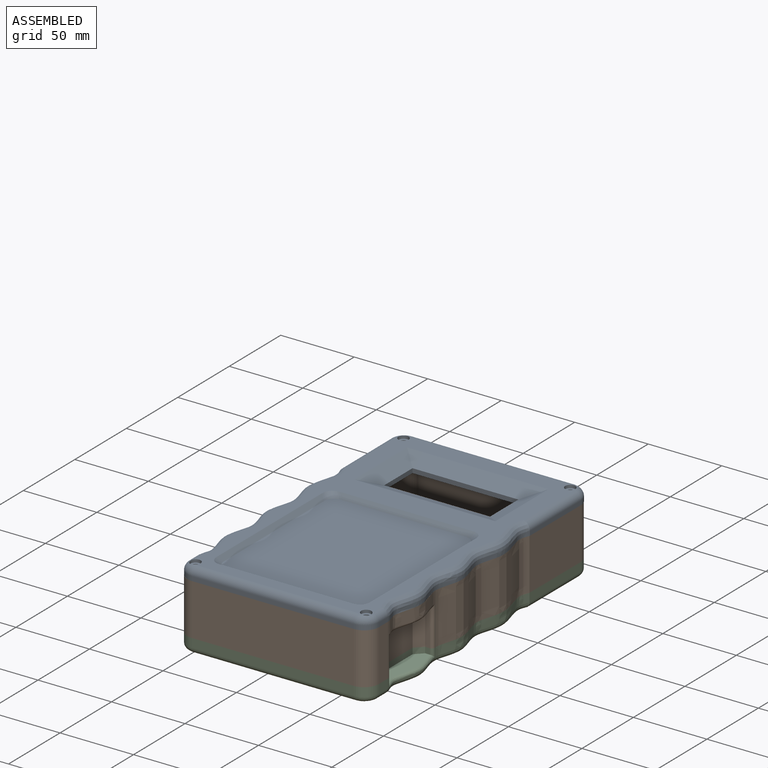
[diagram: assembled view]
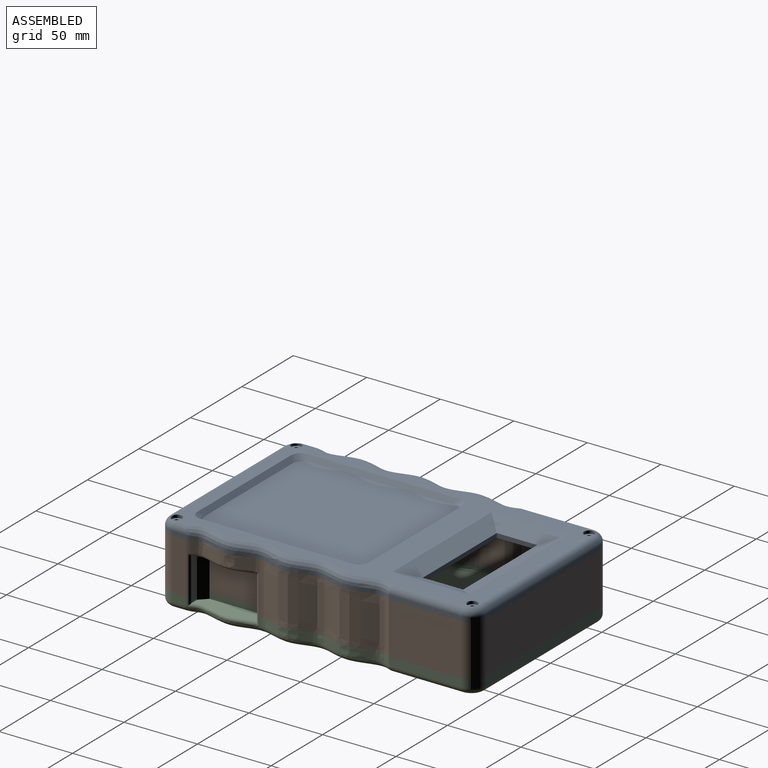
[diagram: assembled view, second angle]
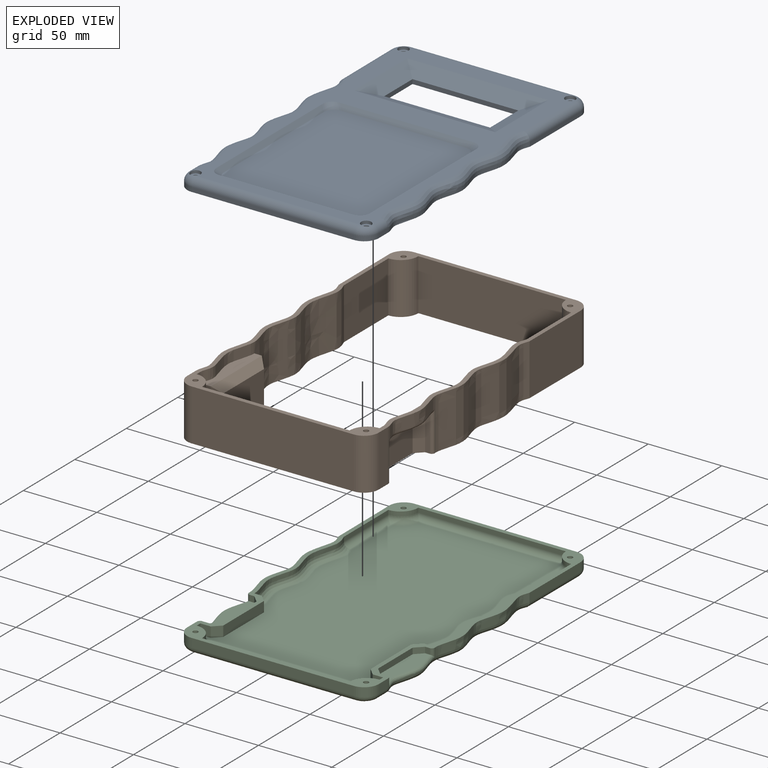
[diagram: exploded view]
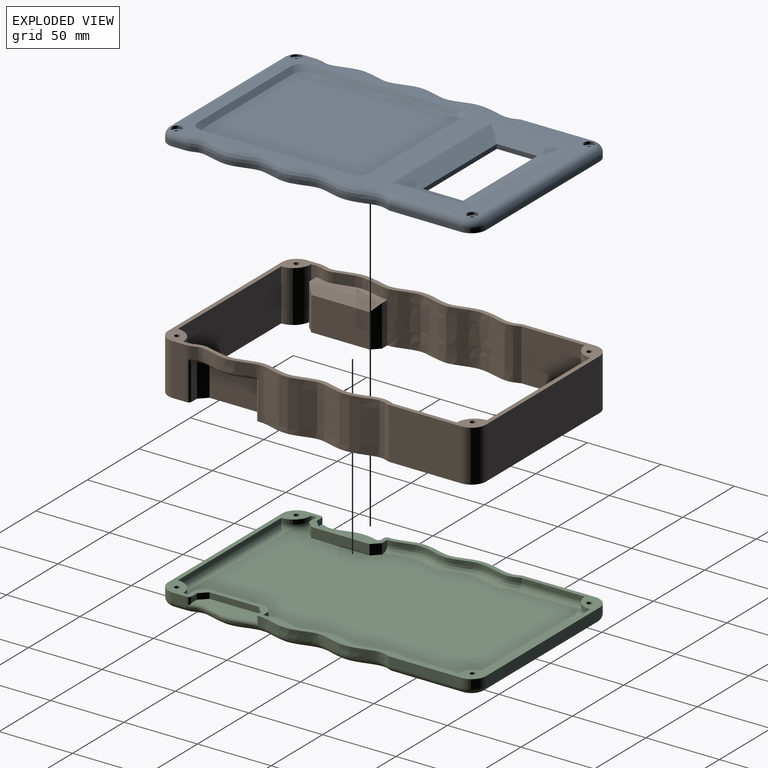
[diagram: exploded view, second angle]
ASSEMBLY  parts=3 mates=2
PART A: 90 faces, bbox 138.4x239.9x11.8 mm
  f0: plane 91.96x5.01mm, normal (0,0,-1), area 450.8mm2, adj f17,f50,f51,f85
  f1: plane 97.98x2.06mm, normal (0,0,-1), area 194mm2, adj f21,f41,f55,f56,f78,f89
  f2: plane 11.46x2.03mm, normal (0,0,-1), area 10.9mm2, adj f22,f41,f53,f54,f55
  f3: plane 39.85x4.02mm, normal (0,0,-1), area 77.6mm2, adj f22,f53
  f4: plane 39.99x4.02mm, normal (0,0,-1), area 75.8mm2, adj f22,f53
  f5: cylinder r=1.75mm len=6mm, axis (0,0,1), area 66mm2, adj f29,f38
  f6: cylinder r=1.75mm len=6mm, axis (0,0,1), area 66mm2, adj f29,f36
  f7: plane 122.16x93.89mm, normal (0,0,-1), area 2671.6mm2, adj f18,f19,f22,f23,f42,f51,f52,f53
  f8: plane 114.39x102.13mm, normal (0,0,1), area 10840.1mm2, adj f32,f33,f34,f39,f40,f71,f76,f77
  f9: plane 72x3mm, normal (0,1,0), area 216mm2, adj f10,f13,f16,f62
  f10: plane 27.5x3mm, normal (1,0,0), area 82.5mm2, adj f9,f11,f13,f15
  f11: plane 72x3mm, normal (0,-1,0), area 216mm2, adj f10,f13,f14,f62
  f12: plane 209.89x128.15mm, normal (0,0,1), area 7531mm2, adj f14,f15,f16,f32,f33,f34,f35,f37
  f13: plane 76x32mm, normal (0,0,-1), area 452mm2, adj f9,f10,f11,f17,f18,f19,f62,f64
  f14: plane 96x12mm, normal (0,-0.38,0.92), area 1092mm2, adj f11,f12,f15,f63
  f15: plane 51.5x12mm, normal (0.38,0,0.92), area 513.5mm2, adj f10,f12,f14,f16
  f16: plane 96x12mm, normal (0,0.38,0.92), area 1092mm2, adj f9,f12,f15,f63
  f17: plane 98.59x12.56mm, normal (0,0.38,-0.92), area 1140.5mm2, adj f0,f13,f18,f51,f64,f85
  f18: plane 55.57x12.55mm, normal (-0.38,0,-0.92), area 569.9mm2, adj f7,f13,f17,f19,f51
  f19: plane 100x12mm, normal (0,-0.38,-0.92), area 1144mm2, adj f7,f13,f18,f64
  f20: plane 118.39x108.13mm, normal (0,0,-1), area 11921.1mm2, adj f21,f22,f23,f41,f42,f65,f78,f79
  f21: plane 96.2x3mm, normal (0,-0.71,-0.71), area 395.4mm2, adj f1,f20,f41,f78
  f22: plane 106.46x3mm, normal (-0.71,0,-0.71), area 439mm2, adj f2,f3,f4,f7,f20,f41,f42,f53
  f23: plane 96.2x3mm, normal (0,0.71,-0.71), area 395.4mm2, adj f7,f20,f42,f79
  f24: plane 110.27x3mm, normal (0,1,0), area 330.8mm2, adj f29,f30,f43,f69
  f25: plane 49.16x3mm, normal (-1,0,0), area 147.5mm2, adj f26,f29,f30,f47
  f26: extruded ~138.43x4.03mm, area 423.1mm2, adj f25,f27,f29,f49
  f27: plane 8.47x3mm, normal (-1,0,0), area 25.4mm2, adj f26,f29,f31,f48
  f28: plane 110.34x3mm, normal (0,-1,0), area 331mm2, adj f29,f31,f44,f70
  f29: plane 218.16x136.41mm, normal (0,0,-1), area 2360.7mm2, adj f5,f6,f24,f25,f26,f27,f28,f30
  f30: cylinder r=10mm len=10.04mm, axis (0,0,1), area 47.2mm2, adj f24,f25,f29,f45
  f31: cylinder r=10mm len=10mm, axis (0,0,-1), area 47.1mm2, adj f27,f28,f29,f46
  f32: plane 90.2x3mm, normal (0,-0.71,0.71), area 370mm2, adj f8,f12,f39,f76
  f33: plane 102.46x3mm, normal (0.71,0,0.71), area 422mm2, adj f8,f12,f39,f40
  f34: plane 90.2x3mm, normal (0,0.71,0.71), area 370mm2, adj f8,f12,f40,f77
  f35: cylinder r=3.5mm len=7mm, axis (0,0,1), area 43.6mm2, adj f12,f36,f43,f45
  f36: plane 7x7mm, normal (0,0,1), area 28.9mm2, adj f6,f35
  f37: cylinder r=3.5mm len=7mm, axis (0,0,1), area 43.8mm2, adj f12,f38,f46,f48
  f38: plane 7x7mm, normal (0,0,1), area 28.9mm2, adj f5,f37
  f39: cylinder r=10mm len=10.07mm, axis (-0.58,0.58,0.58), area 54.4mm2, adj f8,f12,f32,f33
  f40: cylinder r=10mm len=10.07mm, axis (0.58,0.58,-0.58), area 54.4mm2, adj f8,f12,f33,f34
  f41: cylinder r=10mm len=10.82mm, axis (0.58,0.58,-0.58), area 51.2mm2, adj f1,f2,f20,f21,f22,f55
  f42: cylinder r=10mm len=10.07mm, axis (-0.58,0.58,0.58), area 54.4mm2, adj f7,f20,f22,f23
  f43: cylinder r=5mm len=110.27mm, axis (1,0,0), area 866.1mm2, adj f12,f24,f35,f45,f72,f80
  f44: cylinder r=5mm len=110.34mm, axis (-1,0,0), area 866.6mm2, adj f12,f28,f46,f81
  f45: torus R=5mm, axis (0,0,1), area 96.4mm2, adj f12,f30,f35,f43,f47
  f46: torus R=5mm, axis (0,0,1), area 88.3mm2, adj f12,f31,f37,f44,f48
  f47: cylinder r=5mm len=49.18mm, axis (0,1,0), area 382.5mm2, adj f12,f25,f45,f49
  f48: cylinder r=5mm len=8.47mm, axis (0,1,0), area 66.3mm2, adj f12,f27,f37,f46,f49
  f49: bspline ~183.93x9.21mm, area 1115.2mm2, adj f12,f26,f47,f48
  f50: cylinder r=5mm len=104.34mm, axis (1,0,0), area 760.3mm2, adj f0,f29,f51,f85
  f51: bspline ~22.01x21.2mm, area 154.1mm2, adj f0,f7,f17,f18,f29,f50,f52
  f52: cylinder r=5mm len=45.11mm, axis (0,1,0), area 321.5mm2, adj f7,f29,f51,f53
  f53: bspline ~141.35x9.04mm, area 1124.2mm2, adj f2,f3,f4,f7,f22,f29,f52,f54
  f54: cylinder r=5mm len=5.47mm, axis (0,1,0), area 29.6mm2, adj f2,f29,f53,f55
  f55: bspline ~20.33x16.24mm, area 99.1mm2, adj f1,f2,f29,f41,f54,f56
  f56: cylinder r=5mm len=104.34mm, axis (-1,0,0), area 787.6mm2, adj f1,f29,f55,f89
  f57: plane 11.46x2.03mm, normal (0,0,-1), area 10.9mm2, adj f65,f78,f87,f88,f89
  f58: plane 39.85x4.02mm, normal (0,0,-1), area 77.6mm2, adj f65,f87
  f59: plane 39.99x4.02mm, normal (0,0,-1), area 75.8mm2, adj f65,f87
  f60: cylinder r=1.75mm len=6mm, axis (0,0,1), area 66mm2, adj f29,f75
  f61: cylinder r=1.75mm len=6mm, axis (0,0,1), area 66mm2, adj f29,f73
  f62: plane 27.5x3mm, normal (-1,0,0), area 82.5mm2, adj f9,f11,f13,f63
  f63: plane 51.5x12mm, normal (-0.38,0,0.92), area 513.5mm2, adj f12,f14,f16,f62
  f64: plane 55.57x12.55mm, normal (0.38,0,-0.92), area 569.9mm2, adj f7,f13,f17,f19,f85
  f65: plane 106.46x3mm, normal (0.71,0,-0.71), area 439mm2, adj f7,f20,f57,f58,f59,f78,f79,f87
  f66: plane 49.16x3mm, normal (1,0,0), area 147.5mm2, adj f29,f67,f69,f82
  f67: extruded ~138.43x4.03mm, area 423.1mm2, adj f29,f66,f68,f84
  f68: plane 8.47x3mm, normal (1,0,0), area 25.4mm2, adj f29,f67,f70,f83
  f69: cylinder r=10mm len=10.04mm, axis (0,0,1), area 47.2mm2, adj f24,f29,f66,f80
  f70: cylinder r=10mm len=10mm, axis (0,0,-1), area 47.1mm2, adj f28,f29,f68,f81
  f71: plane 102.46x3mm, normal (-0.71,0,0.71), area 422mm2, adj f8,f12,f76,f77
  f72: cylinder r=3.5mm len=7mm, axis (0,0,1), area 43.6mm2, adj f12,f43,f73,f80
  f73: plane 7x7mm, normal (0,0,1), area 28.9mm2, adj f61,f72
  f74: cylinder r=3.5mm len=7mm, axis (0,0,1), area 43.8mm2, adj f12,f75,f81,f83
  f75: plane 7x7mm, normal (0,0,1), area 28.9mm2, adj f60,f74
  f76: cylinder r=10mm len=10.07mm, axis (0.58,0.58,0.58), area 54.4mm2, adj f8,f12,f32,f71
  f77: cylinder r=10mm len=10.07mm, axis (-0.58,0.58,-0.58), area 54.4mm2, adj f8,f12,f34,f71
  f78: cylinder r=10mm len=10.82mm, axis (-0.58,0.58,-0.58), area 51.2mm2, adj f1,f20,f21,f57,f65,f89
  f79: cylinder r=10mm len=10.07mm, axis (0.58,0.58,0.58), area 54.4mm2, adj f7,f20,f23,f65
  f80: torus R=5mm, axis (0,0,1), area 96.4mm2, adj f12,f43,f69,f72,f82
  f81: torus R=5mm, axis (0,0,1), area 88.3mm2, adj f12,f44,f70,f74,f83
  f82: cylinder r=5mm len=49.18mm, axis (0,1,0), area 382.5mm2, adj f12,f66,f80,f84
  f83: cylinder r=5mm len=8.47mm, axis (0,1,0), area 66.3mm2, adj f12,f68,f74,f81,f84
  f84: bspline ~183.93x9.22mm, area 1115.2mm2, adj f12,f67,f82,f83
  f85: bspline ~21.2x21.14mm, area 154.1mm2, adj f0,f7,f17,f29,f50,f64,f86
  f86: cylinder r=5mm len=45.11mm, axis (0,1,0), area 321.5mm2, adj f7,f29,f85,f87
  f87: bspline ~141.35x9.04mm, area 1124.3mm2, adj f7,f29,f57,f58,f59,f65,f86,f88
  f88: cylinder r=5mm len=5.47mm, axis (0,1,0), area 29.6mm2, adj f29,f57,f87,f89
  f89: bspline ~20.33x17.15mm, area 99.1mm2, adj f1,f29,f56,f57,f78,f88
PART B: 78 faces, bbox 134.4x216.1x35 mm
  f0: plane 35x3.48mm, normal (1,0,0), area 121.9mm2, adj f1,f20,f22,f23,f34
  f1: plane 28x7.07mm, normal (0,-1,0), area 197.8mm2, adj f0,f22,f35,f39
  f2: plane 39.6x23mm, normal (1,0,0), area 910.7mm2, adj f22,f39,f40,f41
  f3: plane 28x5.09mm, normal (0,1,0), area 142.6mm2, adj f4,f22,f35,f41
  f4: extruded ~89.93x35mm, area 3223.3mm2, adj f3,f5,f22,f23,f32
  f5: plane 43.1x35mm, normal (1,0,0), area 1508.3mm2, adj f4,f6,f22,f23
  f6: cylinder r=12mm len=35mm, axis (0,0,-1), area 659.7mm2, adj f5,f7,f22,f23
  f7: plane 100.34x35mm, normal (0,-1,0), area 3512mm2, adj f6,f22,f23,f48
  f8: plane 110.14x35mm, normal (0,1,0), area 3855mm2, adj f22,f23,f25,f61
  f9: plane 49.32x35mm, normal (-1,0,0), area 1726.3mm2, adj f10,f22,f23,f25
  f10: extruded ~88.67x35mm, area 3183mm2, adj f9,f11,f22,f23
  f11: extruded ~35x3mm, area 47.8mm2, adj f10,f22,f23,f26,f29,f31
  f12: plane 25x3.13mm, normal (0,-1,0), area 78.1mm2, adj f22,f27,f29,f36
  f13: plane 33.6x20mm, normal (-1,0,0), area 671.9mm2, adj f22,f36,f37,f38
  f14: plane 25.04x5.02mm, normal (0,1,0), area 125.2mm2, adj f22,f27,f28,f30,f38
  f15: extruded ~35x3mm, area 57.8mm2, adj f16,f22,f23,f26,f28,f30
  f16: plane 35x8.48mm, normal (-1,0,0), area 296.9mm2, adj f15,f22,f23,f24
  f17: plane 110.34x35mm, normal (0,-1,0), area 3862mm2, adj f22,f23,f24,f60
  f18: plane 100.34x35mm, normal (0,1,0), area 3512mm2, adj f20,f22,f23,f58
  f19: cylinder r=1.75mm len=35mm, axis (0,0,-1), area 384.8mm2, adj f22,f23
  f20: cylinder r=12mm len=35mm, axis (0,0,-1), area 659.7mm2, adj f0,f18,f22,f23
  f21: cylinder r=1.75mm len=35mm, axis (0,0,-1), area 384.8mm2, adj f22,f23
  f22: plane 216.11x134.35mm, normal (0,0,1), area 2492.4mm2, adj f0,f1,f2,f3,f4,f5,f6,f7
  f23: plane 216.11x134.35mm, normal (0,0,-1), area 2370.7mm2, adj f0,f4,f5,f6,f7,f8,f9,f10
  f24: cylinder r=10mm len=35mm, axis (0,0,-1), area 549.8mm2, adj f16,f17,f22,f23
  f25: cylinder r=10mm len=35mm, axis (0,0,1), area 551mm2, adj f8,f9,f22,f23
  f26: extruded ~43.6x8mm, area 357.4mm2, adj f11,f15,f23,f30
  f27: plane 43.61x7.07mm, normal (0,0,1), area 221mm2, adj f12,f14,f29,f30,f31,f37,f38
  f28: cylinder r=2mm len=26.34mm, axis (0,0,-1), area 75.1mm2, adj f14,f15,f22,f30
  f29: cylinder r=2mm len=27mm, axis (0,0,-1), area 83.8mm2, adj f11,f12,f22,f27,f31
  f30: bspline ~48.25x6.02mm, area 141.5mm2, adj f14,f15,f26,f27,f28,f31
  f31: bspline ~3.55x2.41mm, area 3.1mm2, adj f11,f27,f29,f30
  f32: extruded ~7x3mm, area 21.1mm2, adj f4,f23,f33,f35
  f33: extruded ~43.6x7mm, area 313mm2, adj f23,f32,f34,f35
  f34: extruded ~7x3mm, area 21.4mm2, adj f0,f23,f33,f35
  f35: plane 49.6x9.47mm, normal (0,0,-1), area 343.2mm2, adj f1,f3,f32,f33,f34,f39,f40
  f36: plane 25x5mm, normal (-0.71,-0.71,0), area 159.1mm2, adj f12,f13,f22,f37
  f37: plane 43.6x5mm, normal (-0.71,0,0.71), area 272.9mm2, adj f13,f27,f36,f38
  f38: plane 25x5mm, normal (-0.71,0.71,0), area 159.1mm2, adj f13,f14,f22,f27,f37
  f39: plane 28x5mm, normal (0.71,-0.71,0), area 180.3mm2, adj f1,f2,f22,f35,f40
  f40: plane 49.6x5mm, normal (0.71,0,-0.71), area 315.3mm2, adj f2,f35,f39,f41
  f41: plane 28x5mm, normal (0.71,0.71,0), area 180.3mm2, adj f2,f3,f22,f40
  f42: plane 35x3.48mm, normal (-1,0,0), area 121.9mm2, adj f22,f23,f43,f58,f70
  f43: plane 28x7.07mm, normal (0,-1,0), area 197.8mm2, adj f22,f42,f71,f75
  f44: plane 39.6x23mm, normal (-1,0,0), area 910.7mm2, adj f22,f75,f76,f77
  f45: plane 28x5.09mm, normal (0,1,0), area 142.6mm2, adj f22,f46,f71,f77
  f46: extruded ~89.93x35mm, area 3223.3mm2, adj f22,f23,f45,f47,f68
  f47: plane 43.1x35mm, normal (-1,0,0), area 1508.3mm2, adj f22,f23,f46,f48
  f48: cylinder r=12mm len=35mm, axis (0,0,-1), area 659.7mm2, adj f7,f22,f23,f47
  f49: plane 49.32x35mm, normal (1,0,0), area 1726.3mm2, adj f22,f23,f50,f61
  f50: extruded ~88.67x35mm, area 3183mm2, adj f22,f23,f49,f51
  f51: extruded ~35x3mm, area 47.8mm2, adj f22,f23,f50,f62,f65,f67
  f52: plane 25x3.13mm, normal (0,-1,0), area 78.1mm2, adj f22,f63,f65,f72
  f53: plane 33.6x20mm, normal (1,0,0), area 671.9mm2, adj f22,f72,f73,f74
  f54: plane 25.04x5.02mm, normal (0,1,0), area 125.2mm2, adj f22,f63,f64,f66,f74
  f55: extruded ~35x3mm, area 57.8mm2, adj f22,f23,f56,f62,f64,f66
  f56: plane 35x8.48mm, normal (1,0,0), area 296.9mm2, adj f22,f23,f55,f60
  f57: cylinder r=1.75mm len=35mm, axis (0,0,-1), area 384.8mm2, adj f22,f23
  f58: cylinder r=12mm len=35mm, axis (0,0,-1), area 659.7mm2, adj f18,f22,f23,f42
  f59: cylinder r=1.75mm len=35mm, axis (0,0,-1), area 384.8mm2, adj f22,f23
  f60: cylinder r=10mm len=35mm, axis (0,0,-1), area 549.8mm2, adj f17,f22,f23,f56
  f61: cylinder r=10mm len=35mm, axis (0,0,1), area 551mm2, adj f8,f22,f23,f49
  f62: extruded ~43.6x8mm, area 357.4mm2, adj f23,f51,f55,f66
  f63: plane 43.61x7.07mm, normal (0,0,1), area 221mm2, adj f52,f54,f65,f66,f67,f73,f74
  f64: cylinder r=2mm len=26.34mm, axis (0,0,-1), area 75.1mm2, adj f22,f54,f55,f66
  f65: cylinder r=2mm len=27mm, axis (0,0,-1), area 83.8mm2, adj f22,f51,f52,f63,f67
  f66: bspline ~48.83x6.02mm, area 141.5mm2, adj f54,f55,f62,f63,f64,f67
  f67: bspline ~3.55x2.41mm, area 3.1mm2, adj f51,f63,f65,f66
  f68: extruded ~7x3mm, area 21.1mm2, adj f23,f46,f69,f71
  f69: extruded ~43.6x7mm, area 313mm2, adj f23,f68,f70,f71
  f70: extruded ~7x3mm, area 21.4mm2, adj f23,f42,f69,f71
  f71: plane 49.6x9.47mm, normal (0,0,-1), area 343.2mm2, adj f43,f45,f68,f69,f70,f75,f76
  f72: plane 25x5mm, normal (0.71,-0.71,0), area 159.1mm2, adj f22,f52,f53,f73
  f73: plane 43.6x5mm, normal (0.71,0,0.71), area 272.9mm2, adj f53,f63,f72,f74
  f74: plane 25x5mm, normal (0.71,0.71,0), area 159.1mm2, adj f22,f53,f54,f63,f73
  f75: plane 28x5mm, normal (-0.71,-0.71,0), area 180.3mm2, adj f22,f43,f44,f71,f76
  f76: plane 49.6x5mm, normal (-0.71,0,-0.71), area 315.3mm2, adj f44,f71,f75,f77
  f77: plane 28x5mm, normal (-0.71,0.71,0), area 180.3mm2, adj f22,f44,f45,f76
PART C: 149 faces, bbox 147.2x232.2x10.3 mm
  f0: cylinder r=1.75mm len=6mm, axis (0,0,-1), area 66mm2, adj f24,f65
  f1: cylinder r=1.75mm len=6mm, axis (0,0,-1), area 66mm2, adj f24,f58
  f2: plane 208.12x126.37mm, normal (0,0,-1), area 25191mm2, adj f36,f37,f38,f39,f40,f41,f42,f43
  f3: plane 4x3.13mm, normal (0,-1,0), area 12.5mm2, adj f24,f25,f27,f32
  f4: plane 33.6x4mm, normal (-1,0,0), area 134.4mm2, adj f24,f25,f32,f33
  f5: plane 5.02x4.04mm, normal (0,1,0), area 20mm2, adj f24,f25,f26,f28,f33
  f6: plane 202.11x120.36mm, normal (0,0,1), area 22365.9mm2, adj f17,f18,f19,f30,f31,f46,f47,f48
  f7: plane 110.14x6mm, normal (0,1,0), area 660.9mm2, adj f24,f34,f44,f107
  f8: plane 49.32x6mm, normal (-1,0,0), area 295.9mm2, adj f9,f24,f34,f43
  f9: extruded ~88.67x6mm, area 545.7mm2, adj f8,f10,f24,f42
  f10: extruded ~6x0.88mm, area 5.3mm2, adj f9,f24,f27,f41
  f11: extruded ~6x3mm, area 7.9mm2, adj f12,f24,f26,f28,f39
  f12: plane 8.48x6mm, normal (-1,0,0), area 50.9mm2, adj f11,f24,f35,f38
  f13: plane 110.34x6mm, normal (0,-1,0), area 662.1mm2, adj f24,f35,f36,f108
  f14: plane 100.34x3mm, normal (0,1,0), area 301mm2, adj f15,f24,f47,f90
  f15: cylinder r=12mm len=12mm, axis (0,0,-1), area 56.5mm2, adj f14,f16,f24,f46
  f16: plane 6.97x3.48mm, normal (1,0,0), area 20.9mm2, adj f15,f17,f24,f46
  f17: plane 7.33x7.26mm, normal (0,-1,0), area 49.4mm2, adj f6,f16,f24,f30,f46
  f18: plane 39.6x7mm, normal (1,0,0), area 277.2mm2, adj f6,f24,f30,f31
  f19: plane 7.14x5.23mm, normal (0,1,0), area 32.2mm2, adj f6,f20,f24,f31,f48
  f20: extruded ~89.93x4.05mm, area 276.3mm2, adj f19,f21,f24,f48
  f21: plane 43.1x3mm, normal (1,0,0), area 129.3mm2, adj f20,f22,f24,f49
  f22: cylinder r=12mm len=12mm, axis (0,0,-1), area 56.5mm2, adj f21,f23,f24,f50
  f23: plane 100.34x3mm, normal (0,-1,0), area 301mm2, adj f22,f24,f51,f97
  f24: plane 216.11x134.35mm, normal (0,0,1), area 2492.4mm2, adj f0,f1,f3,f4,f5,f7,f8,f9
  f25: plane 43.61x12.07mm, normal (0,0,1), area 413.9mm2, adj f3,f4,f5,f27,f28,f29,f32,f33
  f26: cylinder r=2mm len=5.34mm, axis (0,0,-1), area 13.7mm2, adj f5,f11,f24,f28
  f27: cylinder r=2mm len=6mm, axis (0,0,-1), area 15.2mm2, adj f3,f10,f24,f25,f29
  f28: bspline ~48.25x6.02mm, area 141.5mm2, adj f5,f11,f25,f26,f29,f40
  f29: bspline ~3.55x2.41mm, area 3.1mm2, adj f25,f27,f28,f41
  f30: plane 7x5mm, normal (0.71,-0.71,0), area 49.5mm2, adj f6,f17,f18,f24
  f31: plane 7x5mm, normal (0.71,0.71,0), area 49.5mm2, adj f6,f18,f19,f24
  f32: plane 5x5mm, normal (-0.71,-0.71,0), area 28.3mm2, adj f3,f4,f24,f25
  f33: plane 5x5mm, normal (-0.71,0.71,0), area 28.3mm2, adj f4,f5,f24,f25
  f34: cylinder r=10mm len=10.04mm, axis (0,0,1), area 94.5mm2, adj f7,f8,f24,f45
  f35: cylinder r=10mm len=10mm, axis (0,0,-1), area 94.2mm2, adj f12,f13,f24,f37
  f36: cylinder r=4mm len=110.34mm, axis (1,0,0), area 693.3mm2, adj f2,f13,f37,f109
  f37: torus R=6mm, axis (0,0,1), area 71.1mm2, adj f2,f35,f36,f38,f75,f77,f79
  f38: cylinder r=4mm len=8.48mm, axis (0,-1,0), area 53.3mm2, adj f2,f12,f37,f39,f78
  f39: bspline ~4.32x4mm, area 16.9mm2, adj f2,f11,f38,f40
  f40: bspline ~89.12x15.54mm, area 281.6mm2, adj f2,f28,f39,f41
  f41: bspline ~9.88x4.41mm, area 20.6mm2, adj f2,f10,f29,f40,f42
  f42: bspline ~110.43x8.28mm, area 571.6mm2, adj f2,f9,f41,f43
  f43: cylinder r=4mm len=49.34mm, axis (0,-1,0), area 307.6mm2, adj f2,f8,f42,f45
  f44: cylinder r=4mm len=110.14mm, axis (-1,0,0), area 692.1mm2, adj f2,f7,f45,f116
  f45: torus R=6mm, axis (0,0,1), area 82.3mm2, adj f2,f34,f43,f44,f66,f67,f69
  f46: torus R=16mm, axis (0,0,1), area 120.5mm2, adj f6,f15,f16,f17,f47
  f47: cylinder r=4mm len=100.34mm, axis (1,0,0), area 608.5mm2, adj f6,f14,f46,f117
  f48: bspline ~93.01x8.08mm, area 579.8mm2, adj f6,f19,f20,f49
  f49: cylinder r=4mm len=43.1mm, axis (0,-1,0), area 257.4mm2, adj f6,f21,f48,f50
  f50: torus R=16mm, axis (0,0,1), area 110.3mm2, adj f6,f22,f49,f51
  f51: cylinder r=4mm len=100.34mm, axis (-1,0,0), area 608.5mm2, adj f6,f23,f50,f120
  f52: plane 3.21x3.16mm, normal (0.87,-0.5,0), area 11.1mm2, adj f53,f57,f58,f76,f77,f78,f79
  f53: plane 3.52x3.21mm, normal (0,-1,0), area 11.3mm2, adj f52,f54,f58,f74
  f54: plane 3.21x3.05mm, normal (-0.87,-0.5,0), area 11.3mm2, adj f53,f55,f58,f72
  f55: plane 3.21x3.05mm, normal (-0.87,0.5,0), area 11.3mm2, adj f54,f56,f58,f73
  f56: plane 3.62x3.21mm, normal (0,1,0), area 10.9mm2, adj f55,f57,f58,f75,f77
  f57: plane 3.13x2.99mm, normal (0.87,0.5,0), area 10mm2, adj f52,f56,f58,f77
  f58: plane 7.04x6.1mm, normal (0,0,-1), area 22.6mm2, adj f1,f52,f53,f54,f55,f56,f57
  f59: plane 3.21x3.05mm, normal (-0.5,-0.87,0), area 11.3mm2, adj f60,f64,f65,f69
  f60: plane 3.52x3.21mm, normal (-1,0,0), area 11.3mm2, adj f59,f61,f65,f71
  f61: plane 3.21x3.05mm, normal (-0.5,0.87,0), area 11.3mm2, adj f60,f62,f65,f70
  f62: plane 3.21x3.05mm, normal (0.5,0.87,0), area 11.3mm2, adj f61,f63,f65,f68
  f63: plane 3.52x3.21mm, normal (1,0,0), area 11.3mm2, adj f62,f64,f65,f66
  f64: plane 3.21x3.05mm, normal (0.5,-0.87,0), area 11.3mm2, adj f59,f63,f65,f67
  f65: plane 7.04x6.1mm, normal (0,0,-1), area 22.6mm2, adj f0,f59,f60,f61,f62,f63,f64
  f66: plane 4.47x0.86mm, normal (0.71,0,-0.71), area 4.4mm2, adj f2,f45,f63,f67,f68
  f67: plane 3.77x2.64mm, normal (0.35,-0.61,-0.71), area 4.3mm2, adj f45,f64,f66,f69
  f68: plane 3.84x2.67mm, normal (0.35,0.61,-0.71), area 4.4mm2, adj f2,f62,f66,f70
  f69: plane 3.85x2.65mm, normal (-0.35,-0.61,-0.71), area 4.4mm2, adj f2,f45,f59,f67,f71
  f70: plane 3.84x2.67mm, normal (-0.35,0.61,-0.71), area 4.4mm2, adj f2,f61,f68,f71
  f71: plane 4.43x0.79mm, normal (-0.71,0,-0.71), area 4.4mm2, adj f2,f60,f69,f70
  f72: plane 3.84x2.67mm, normal (-0.61,-0.35,-0.71), area 4.4mm2, adj f2,f54,f73,f74
  f73: plane 3.86x2.68mm, normal (-0.61,0.35,-0.71), area 4.4mm2, adj f2,f55,f72,f75
  f74: plane 4.43x0.79mm, normal (0,-0.71,-0.71), area 4.4mm2, adj f2,f53,f72,f76
  f75: bspline ~5.67x1.52mm, area 5.2mm2, adj f37,f56,f73,f77
  f76: plane 1.95x1.36mm, normal (0.61,-0.35,-0.71), area 1.8mm2, adj f2,f52,f74,f78
  f77: bspline ~4.59x3.29mm, area 5.4mm2, adj f37,f52,f56,f57,f75,f79
  f78: bspline ~0.79x0.77mm, area 0.2mm2, adj f38,f52,f76,f79
  f79: bspline ~2.55x2.31mm, area 3mm2, adj f37,f52,f77,f78
  f80: cylinder r=1.75mm len=6mm, axis (0,0,-1), area 66mm2, adj f24,f134
  f81: cylinder r=1.75mm len=6mm, axis (0,0,-1), area 66mm2, adj f24,f127
  f82: plane 4x3.13mm, normal (0,-1,0), area 12.5mm2, adj f24,f98,f100,f105
  f83: plane 33.6x4mm, normal (1,0,0), area 134.4mm2, adj f24,f98,f105,f106
  f84: plane 5.02x4.04mm, normal (0,1,0), area 20mm2, adj f24,f98,f99,f101,f106
  f85: plane 49.32x6mm, normal (1,0,0), area 295.9mm2, adj f24,f86,f107,f115
  f86: extruded ~88.67x6mm, area 545.7mm2, adj f24,f85,f87,f114
  f87: extruded ~6x0.88mm, area 5.3mm2, adj f24,f86,f100,f113
  f88: extruded ~6x3mm, area 7.9mm2, adj f24,f89,f99,f101,f111
  f89: plane 8.48x6mm, normal (1,0,0), area 50.9mm2, adj f24,f88,f108,f110
  f90: cylinder r=12mm len=12mm, axis (0,0,-1), area 56.5mm2, adj f14,f24,f91,f117
  f91: plane 6.97x3.48mm, normal (-1,0,0), area 20.9mm2, adj f24,f90,f92,f117
  f92: plane 7.33x7.26mm, normal (0,-1,0), area 49.4mm2, adj f6,f24,f91,f103,f117
  f93: plane 39.6x7mm, normal (-1,0,0), area 277.2mm2, adj f6,f24,f103,f104
  f94: plane 7.14x5.23mm, normal (0,1,0), area 32.2mm2, adj f6,f24,f95,f104,f118
  f95: extruded ~89.93x4.05mm, area 276.3mm2, adj f24,f94,f96,f118
  f96: plane 43.1x3mm, normal (-1,0,0), area 129.3mm2, adj f24,f95,f97,f119
  f97: cylinder r=12mm len=12mm, axis (0,0,-1), area 56.5mm2, adj f23,f24,f96,f120
  f98: plane 43.61x12.07mm, normal (0,0,1), area 413.9mm2, adj f82,f83,f84,f100,f101,f102,f105,f106
  f99: cylinder r=2mm len=5.34mm, axis (0,0,-1), area 13.7mm2, adj f24,f84,f88,f101
  f100: cylinder r=2mm len=6mm, axis (0,0,-1), area 15.2mm2, adj f24,f82,f87,f98,f102
  f101: bspline ~48.83x6.02mm, area 141.5mm2, adj f84,f88,f98,f99,f102,f112
  f102: bspline ~3.55x2.41mm, area 3.1mm2, adj f98,f100,f101,f113
  f103: plane 7x5mm, normal (-0.71,-0.71,0), area 49.5mm2, adj f6,f24,f92,f93
  f104: plane 7x5mm, normal (-0.71,0.71,0), area 49.5mm2, adj f6,f24,f93,f94
  f105: plane 5x5mm, normal (0.71,-0.71,0), area 28.3mm2, adj f24,f82,f83,f98
  f106: plane 5x5mm, normal (0.71,0.71,0), area 28.3mm2, adj f24,f83,f84,f98
  f107: cylinder r=10mm len=10.04mm, axis (0,0,1), area 94.5mm2, adj f7,f24,f85,f116
  f108: cylinder r=10mm len=10mm, axis (0,0,-1), area 94.2mm2, adj f13,f24,f89,f109
  f109: torus R=6mm, axis (0,0,1), area 71.1mm2, adj f2,f36,f108,f110,f144,f146,f148
  f110: cylinder r=4mm len=8.48mm, axis (0,-1,0), area 53.3mm2, adj f2,f89,f109,f111,f147
  f111: bspline ~4.32x4mm, area 16.9mm2, adj f2,f88,f110,f112
  f112: bspline ~89.12x15.54mm, area 281.6mm2, adj f2,f101,f111,f113
  f113: bspline ~9.88x4.41mm, area 20.6mm2, adj f2,f87,f102,f112,f114
  f114: bspline ~110.43x8.28mm, area 571.6mm2, adj f2,f86,f113,f115
  f115: cylinder r=4mm len=49.34mm, axis (0,-1,0), area 307.6mm2, adj f2,f85,f114,f116
  f116: torus R=6mm, axis (0,0,1), area 82.3mm2, adj f2,f44,f107,f115,f135,f136,f138
  f117: torus R=16mm, axis (0,0,1), area 120.5mm2, adj f6,f47,f90,f91,f92
  f118: bspline ~93.01x8.08mm, area 579.8mm2, adj f6,f94,f95,f119
  f119: cylinder r=4mm len=43.1mm, axis (0,-1,0), area 257.4mm2, adj f6,f96,f118,f120
  f120: torus R=16mm, axis (0,0,1), area 110.3mm2, adj f6,f51,f97,f119
  f121: plane 3.21x3.16mm, normal (-0.87,-0.5,0), area 11.1mm2, adj f122,f126,f127,f145,f146,f147,f148
  f122: plane 3.52x3.21mm, normal (0,-1,0), area 11.3mm2, adj f121,f123,f127,f143
  f123: plane 3.21x3.05mm, normal (0.87,-0.5,0), area 11.3mm2, adj f122,f124,f127,f141
  f124: plane 3.21x3.05mm, normal (0.87,0.5,0), area 11.3mm2, adj f123,f125,f127,f142
  f125: plane 3.62x3.21mm, normal (0,1,0), area 10.9mm2, adj f124,f126,f127,f144,f146
  f126: plane 3.13x2.99mm, normal (-0.87,0.5,0), area 10mm2, adj f121,f125,f127,f146
  f127: plane 7.04x6.1mm, normal (0,0,-1), area 22.6mm2, adj f81,f121,f122,f123,f124,f125,f126
  f128: plane 3.21x3.05mm, normal (0.5,-0.87,0), area 11.3mm2, adj f129,f133,f134,f138
  f129: plane 3.52x3.21mm, normal (1,0,0), area 11.3mm2, adj f128,f130,f134,f140
  f130: plane 3.21x3.05mm, normal (0.5,0.87,0), area 11.3mm2, adj f129,f131,f134,f139
  f131: plane 3.21x3.05mm, normal (-0.5,0.87,0), area 11.3mm2, adj f130,f132,f134,f137
  f132: plane 3.52x3.21mm, normal (-1,0,0), area 11.3mm2, adj f131,f133,f134,f135
  f133: plane 3.21x3.05mm, normal (-0.5,-0.87,0), area 11.3mm2, adj f128,f132,f134,f136
  f134: plane 7.04x6.1mm, normal (0,0,-1), area 22.6mm2, adj f80,f128,f129,f130,f131,f132,f133
  f135: plane 4.47x0.86mm, normal (-0.71,0,-0.71), area 4.4mm2, adj f2,f116,f132,f136,f137
  f136: plane 3.77x2.64mm, normal (-0.35,-0.61,-0.71), area 4.3mm2, adj f116,f133,f135,f138
  f137: plane 3.84x2.67mm, normal (-0.35,0.61,-0.71), area 4.4mm2, adj f2,f131,f135,f139
  f138: plane 3.85x2.65mm, normal (0.35,-0.61,-0.71), area 4.4mm2, adj f2,f116,f128,f136,f140
  f139: plane 3.84x2.67mm, normal (0.35,0.61,-0.71), area 4.4mm2, adj f2,f130,f137,f140
  f140: plane 4.43x0.79mm, normal (0.71,0,-0.71), area 4.4mm2, adj f2,f129,f138,f139
  f141: plane 3.84x2.67mm, normal (0.61,-0.35,-0.71), area 4.4mm2, adj f2,f123,f142,f143
  f142: plane 3.86x2.68mm, normal (0.61,0.35,-0.71), area 4.4mm2, adj f2,f124,f141,f144
  f143: plane 4.43x0.79mm, normal (0,-0.71,-0.71), area 4.4mm2, adj f2,f122,f141,f145
  f144: bspline ~4.73x1.39mm, area 5.2mm2, adj f109,f125,f142,f146
  f145: plane 1.95x1.36mm, normal (-0.61,-0.35,-0.71), area 1.8mm2, adj f2,f121,f143,f147
  f146: bspline ~4.59x3.28mm, area 5.4mm2, adj f109,f121,f125,f126,f144,f148
  f147: bspline ~0.79x0.77mm, area 0.2mm2, adj f110,f121,f145,f148
  f148: bspline ~2.65x2.39mm, area 3mm2, adj f109,f121,f146,f147
PLACE A t=(-123.41,15.83,48.94)mm
PLACE B rot(axis=(0,1,0),180deg) t=(-151.39,102.04,43.94)mm
PLACE C t=(-126.65,52.53,-1.06)mm
MATE fastened C.f1 <-> B.f57  axis (0,0,1) through (-181.53,-44.79,8.94)mm
MATE fastened B.f59 <-> A.f6  axis (0,0,1) through (-180.13,155.36,43.94)mm
